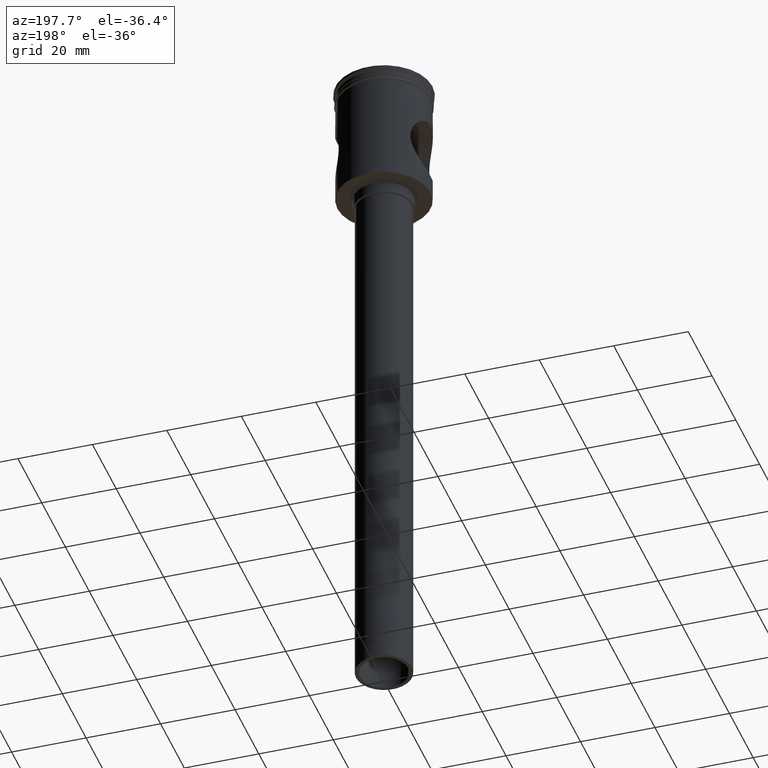
[diagram: clean part render]
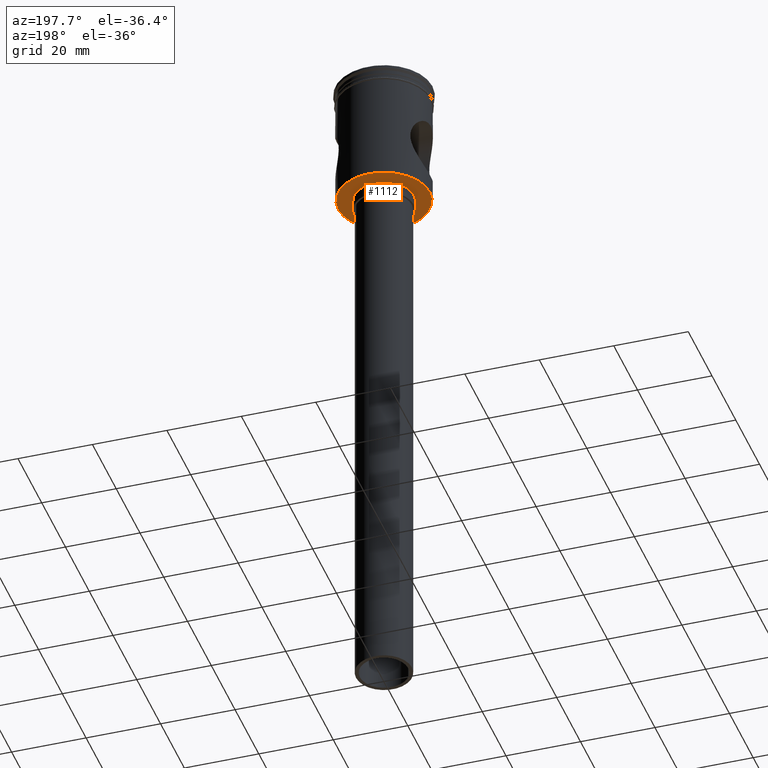
[diagram: same view with one face highlighted and labeled with its STEP entity id]
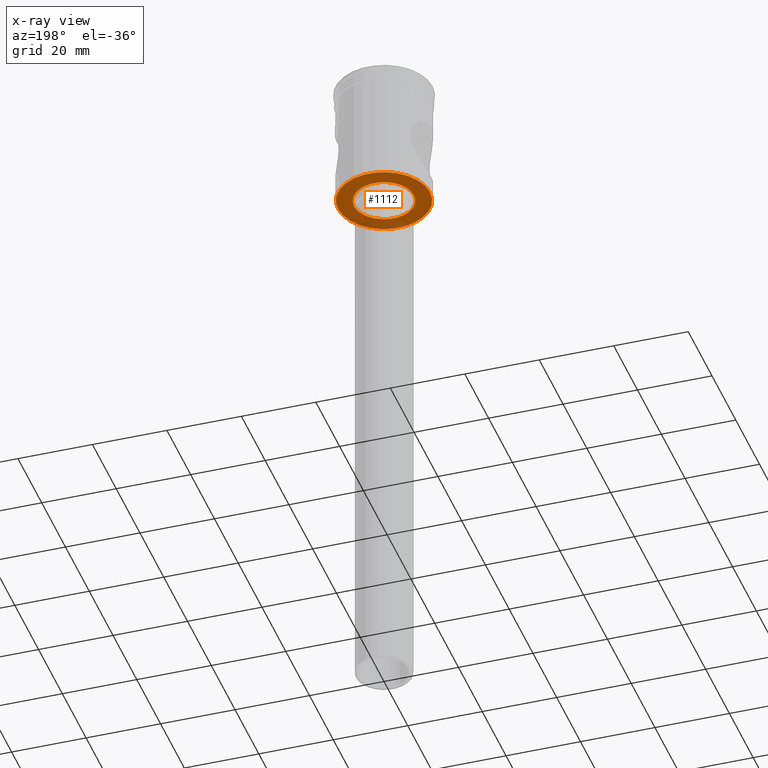
[diagram: x-ray of the same camera — body ghosted, the highlighted face saturated]
A machine part, auxiliary view. The second image highlights one B-rep face of the part: STEP entity #1112.
The next image is the same camera in x-ray: the body ghosted, the highlighted face saturated — about 15% of this face is hidden behind the body in this view.
In plain terms, the highlighted planar face has unit normal (0, 0, -1).
Its self-contained STEP definition (entity closure, byte-faithful):
#83 = VERTEX_POINT ( 'NONE', #1042 ) ;
#102 = CIRCLE ( 'NONE', #966, 8.000000000000000000 ) ;
#139 = FACE_BOUND ( 'NONE', #1015, .T. ) ;
#263 = VERTEX_POINT ( 'NONE', #512 ) ;
#339 = CARTESIAN_POINT ( 'NONE',  ( 0.000000000000000000, 0.000000000000000000, -33.50000000000000000 ) ) ;
#347 = DIRECTION ( 'NONE',  ( 0.000000000000000000, 0.000000000000000000, -1.000000000000000000 ) ) ;
#398 = CIRCLE ( 'NONE', #1164, 8.000000000000000000 ) ;
#435 = ORIENTED_EDGE ( 'NONE', *, *, #725, .F. ) ;
#441 = CARTESIAN_POINT ( 'NONE',  ( 0.000000000000000000, 0.000000000000000000, -33.50000000000000000 ) ) ;
#462 = EDGE_CURVE ( 'NONE', #1332, #263, #721, .T. ) ;
#464 = DIRECTION ( 'NONE',  ( -1.000000000000000000, 0.000000000000000000, 0.000000000000000000 ) ) ;
#512 = CARTESIAN_POINT ( 'NONE',  ( 12.29999999999999361, 0.000000000000000000, -33.50000000000000000 ) ) ;
#523 = DIRECTION ( 'NONE',  ( 0.000000000000000000, 0.000000000000000000, -1.000000000000000000 ) ) ;
#686 = DIRECTION ( 'NONE',  ( 0.000000000000000000, 0.000000000000000000, -1.000000000000000000 ) ) ;
#721 = CIRCLE ( 'NONE', #1531, 12.29999999999999361 ) ;
#725 = EDGE_CURVE ( 'NONE', #1030, #83, #102, .T. ) ;
#728 = CIRCLE ( 'NONE', #918, 12.29999999999999361 ) ;
#755 = CARTESIAN_POINT ( 'NONE',  ( 0.000000000000000000, 12.49999999999999289, -33.50000000000000000 ) ) ;
#762 = DIRECTION ( 'NONE',  ( -1.000000000000000000, 0.000000000000000000, 0.000000000000000000 ) ) ;
#783 = EDGE_LOOP ( 'NONE', ( #1259, #867 ) ) ;
#864 = DIRECTION ( 'NONE',  ( -1.000000000000000000, 0.000000000000000000, 0.000000000000000000 ) ) ;
#867 = ORIENTED_EDGE ( 'NONE', *, *, #462, .T. ) ;
#878 = CARTESIAN_POINT ( 'NONE',  ( 0.000000000000000000, 0.000000000000000000, -33.50000000000000000 ) ) ;
#904 = ORIENTED_EDGE ( 'NONE', *, *, #965, .F. ) ;
#914 = AXIS2_PLACEMENT_3D ( 'NONE', #755, #953, #1425 ) ;
#918 = AXIS2_PLACEMENT_3D ( 'NONE', #878, #523, #762 ) ;
#953 = DIRECTION ( 'NONE',  ( 0.000000000000000000, 0.000000000000000000, -1.000000000000000000 ) ) ;
#965 = EDGE_CURVE ( 'NONE', #83, #1030, #398, .T. ) ;
#966 = AXIS2_PLACEMENT_3D ( 'NONE', #1072, #1422, #864 ) ;
#1015 = EDGE_LOOP ( 'NONE', ( #904, #435 ) ) ;
#1030 = VERTEX_POINT ( 'NONE', #1409 ) ;
#1042 = CARTESIAN_POINT ( 'NONE',  ( 8.000000000000000000, 0.000000000000000000, -33.50000000000000000 ) ) ;
#1072 = CARTESIAN_POINT ( 'NONE',  ( 0.000000000000000000, 0.000000000000000000, -33.50000000000000000 ) ) ;
#1107 = PLANE ( 'NONE',  #914 ) ;
#1112 = ADVANCED_FACE ( 'NONE', ( #1217, #139 ), #1107, .T. ) ;
#1159 = DIRECTION ( 'NONE',  ( -1.000000000000000000, 0.000000000000000000, 0.000000000000000000 ) ) ;
#1164 = AXIS2_PLACEMENT_3D ( 'NONE', #339, #686, #1159 ) ;
#1202 = EDGE_CURVE ( 'NONE', #263, #1332, #728, .T. ) ;
#1217 = FACE_OUTER_BOUND ( 'NONE', #783, .T. ) ;
#1259 = ORIENTED_EDGE ( 'NONE', *, *, #1202, .T. ) ;
#1332 = VERTEX_POINT ( 'NONE', #1497 ) ;
#1409 = CARTESIAN_POINT ( 'NONE',  ( -8.000000000000000000, 9.797174393178825657E-16, -33.50000000000000000 ) ) ;
#1422 = DIRECTION ( 'NONE',  ( 0.000000000000000000, 0.000000000000000000, -1.000000000000000000 ) ) ;
#1425 = DIRECTION ( 'NONE',  ( -1.000000000000000000, 0.000000000000000000, -0.000000000000000000 ) ) ;
#1497 = CARTESIAN_POINT ( 'NONE',  ( -12.29999999999999361, 1.518562030942717573E-15, -33.50000000000000000 ) ) ;
#1531 = AXIS2_PLACEMENT_3D ( 'NONE', #441, #347, #464 ) ;